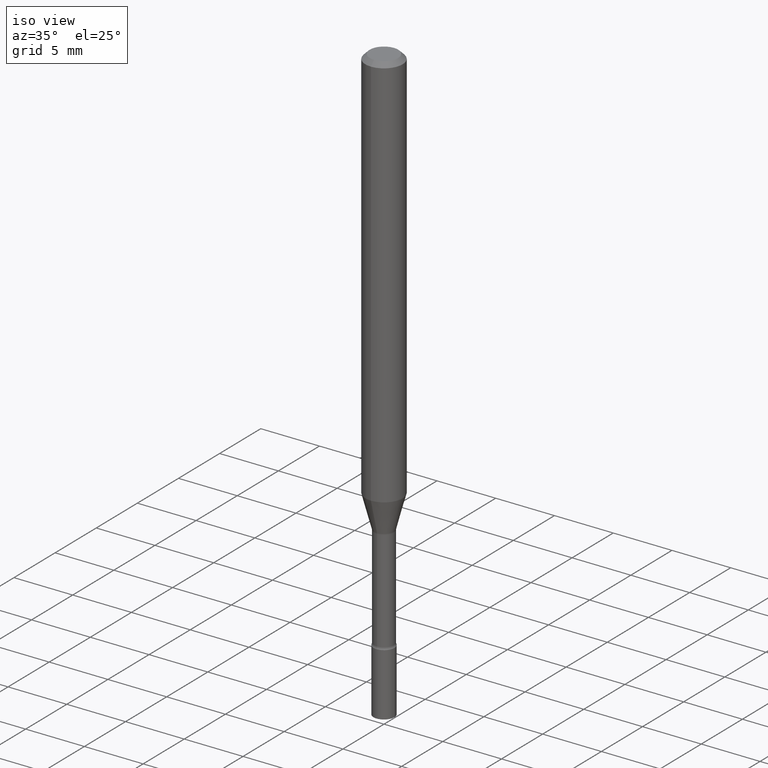
[diagram: clean part render]
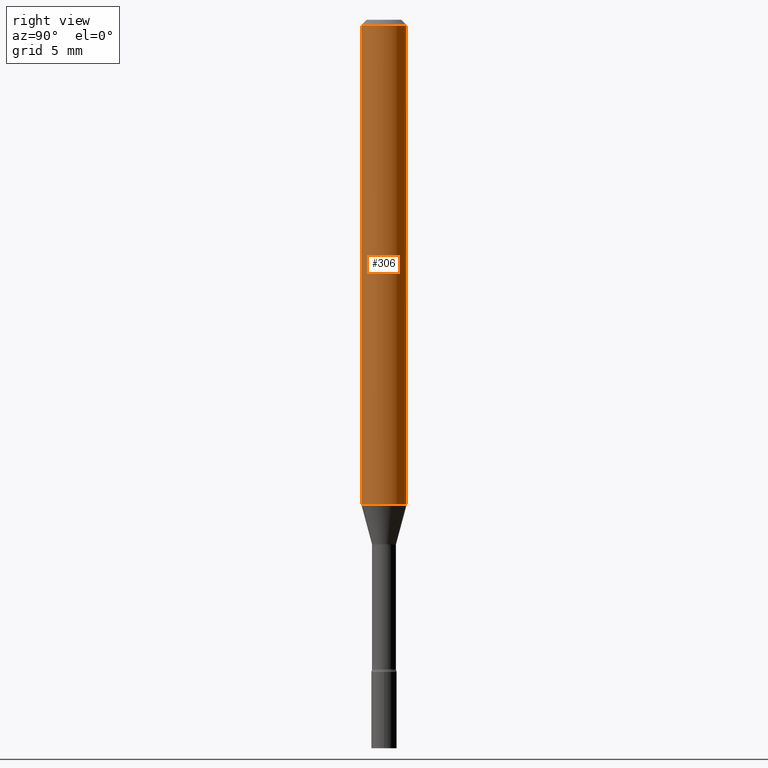
[diagram: tour spotlight — one face highlighted and labeled with its STEP entity id]
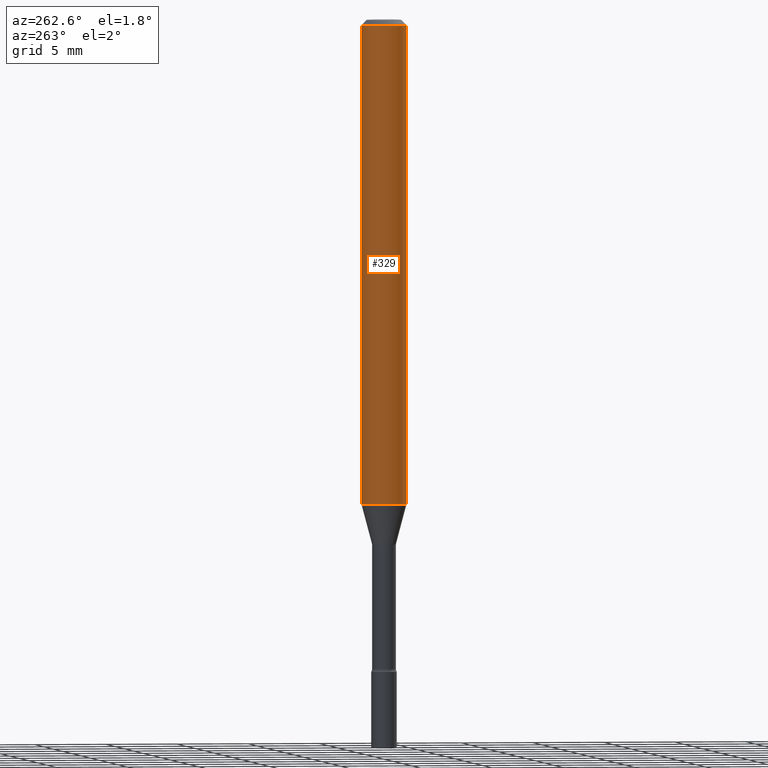
[diagram: tour spotlight — one face highlighted and labeled with its STEP entity id]
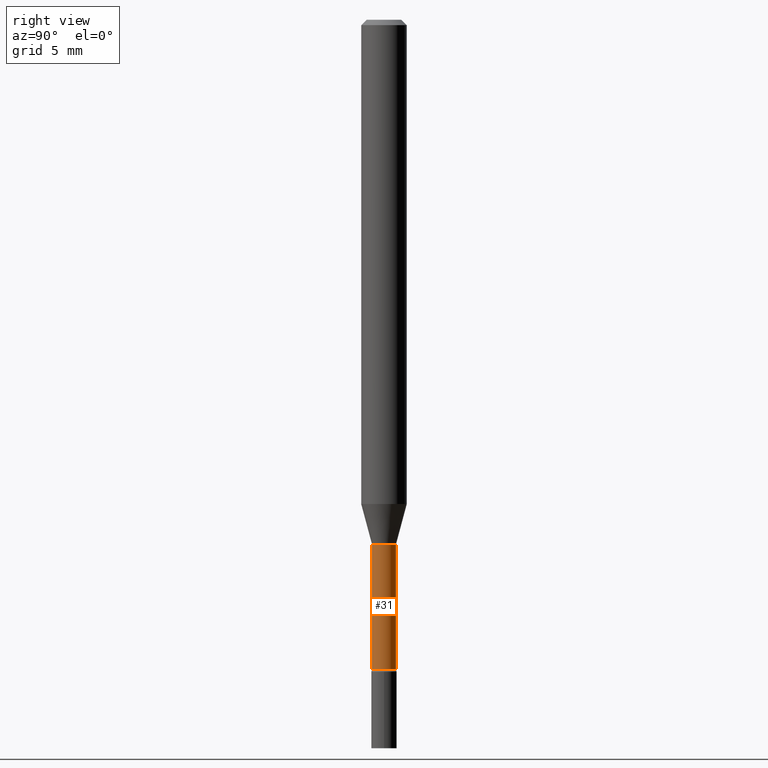
[diagram: tour spotlight — one face highlighted and labeled with its STEP entity id]
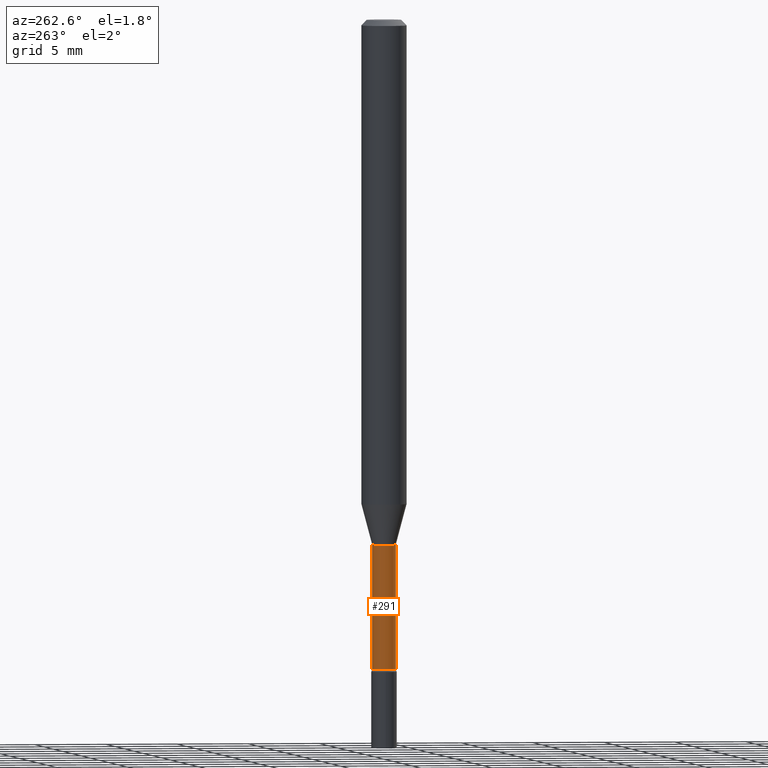
[diagram: tour spotlight — one face highlighted and labeled with its STEP entity id]
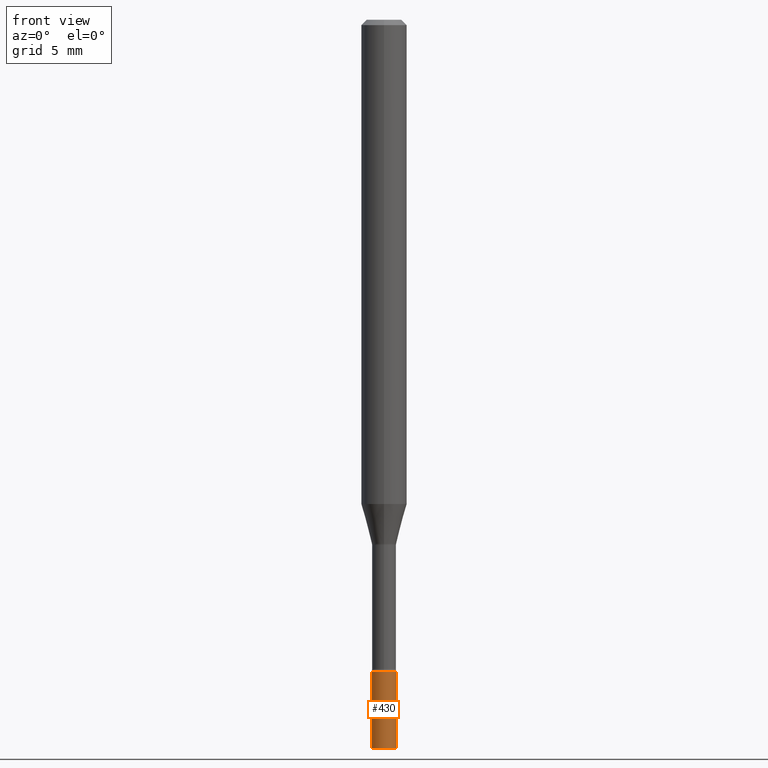
[diagram: tour spotlight — one face highlighted and labeled with its STEP entity id]
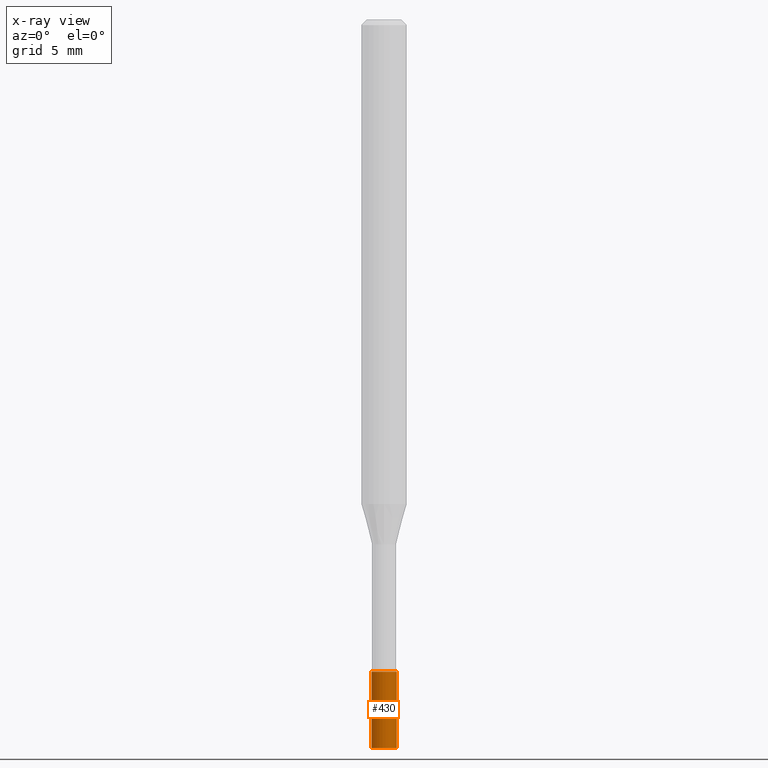
[diagram: x-ray of the same camera — body ghosted, this tour face saturated]
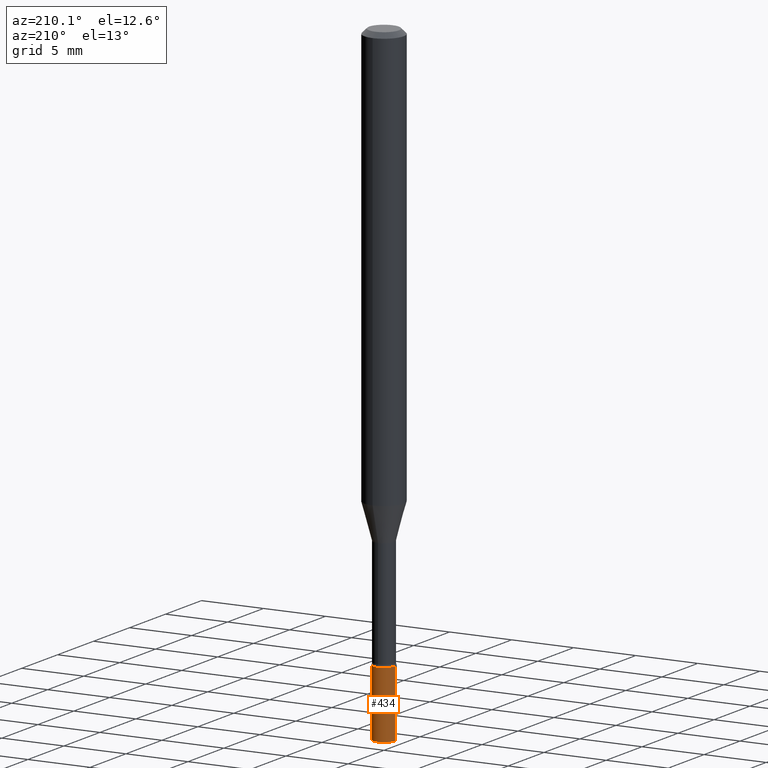
[diagram: tour spotlight — one face highlighted and labeled with its STEP entity id]
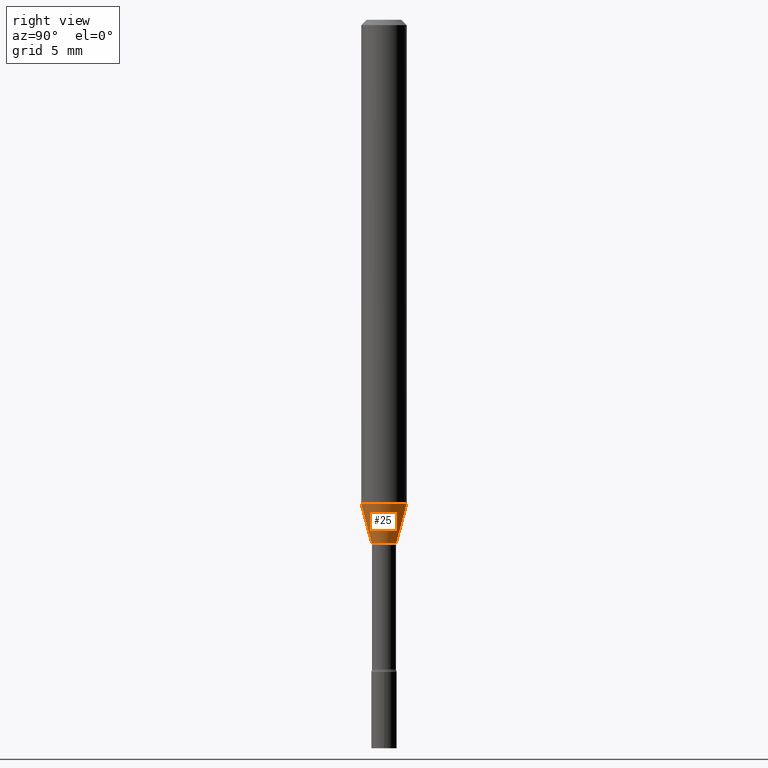
[diagram: tour spotlight — one face highlighted and labeled with its STEP entity id]
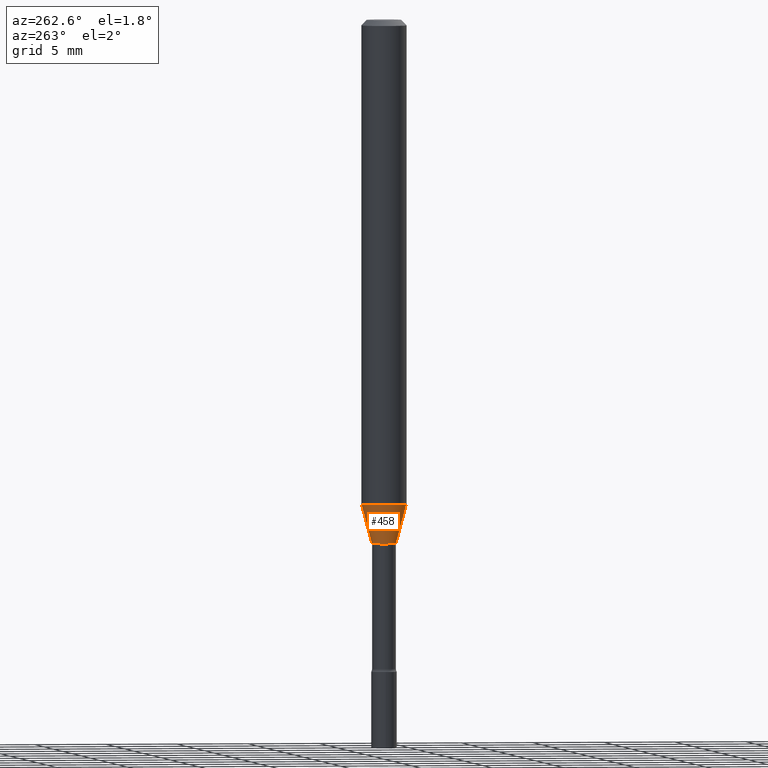
[diagram: tour spotlight — one face highlighted and labeled with its STEP entity id]
A machine part: a face-by-face anatomy tour. The part has 18 B-rep faces; the first image is the clean iso view, then the 8 largest visible faces are spotlighted one at a time (largest first), each with its STEP entity span.

Face 1 — right view, entity #306. In plain terms, the highlighted cylindrical surface (edge-blend (fillet) strip) has radius 1.5875 mm, axis along (-0, 0, 1).
Definition (entity closure, byte-faithful):
#6 = LINE ( 'NONE', #322, #106 ) ;
#68 = CIRCLE ( 'NONE', #366, 0.06250000000000000000 ) ;
#75 = DIRECTION ( 'NONE',  ( -2.445505270089493752E-29, 3.491429120456710013E-15, 1.000000000000000000 ) ) ;
#80 = CARTESIAN_POINT ( 'NONE',  ( 4.440892098500948609E-16, 0.06249999999999532319, -1.329531296095961546 ) ) ;
#97 = VECTOR ( 'NONE', #75, 39.37007874015748143 ) ;
#98 = CARTESIAN_POINT ( 'NONE',  ( 4.440892098500952553E-16, 0.06249999999999993755, -0.01500000000000024751 ) ) ;
#106 = VECTOR ( 'NONE', #273, 39.37007874015748143 ) ;
#112 = CIRCLE ( 'NONE', #379, 0.06250000000000000000 ) ;
#115 = VERTEX_POINT ( 'NONE', #248 ) ;
#136 = DIRECTION ( 'NONE',  ( -6.982962677686265922E-15, -1.000000000000000000, 4.370956789862821150E-15 ) ) ;
#155 = ORIENTED_EDGE ( 'NONE', *, *, #188, .T. ) ;
#166 = VERTEX_POINT ( 'NONE', #377 ) ;
#188 = EDGE_CURVE ( 'NONE', #498, #264, #302, .T. ) ;
#221 = DIRECTION ( 'NONE',  ( -2.445505270089493471E-29, 3.491429120456710013E-15, 1.000000000000000000 ) ) ;
#223 = EDGE_CURVE ( 'NONE', #115, #264, #112, .T. ) ;
#236 = ORIENTED_EDGE ( 'NONE', *, *, #223, .F. ) ;
#248 = CARTESIAN_POINT ( 'NONE',  ( -4.364351673553912750E-16, -0.06250000000000005551, -0.01499999999999981209 ) ) ;
#263 = DIRECTION ( 'NONE',  ( -2.445505270089493471E-29, 3.491429120456710013E-15, 1.000000000000000000 ) ) ;
#264 = VERTEX_POINT ( 'NONE', #98 ) ;
#271 = EDGE_CURVE ( 'NONE', #166, #498, #68, .T. ) ;
#273 = DIRECTION ( 'NONE',  ( -2.445505270089493752E-29, 3.491429120456710013E-15, 1.000000000000000000 ) ) ;
#302 = LINE ( 'NONE', #471, #97 ) ;
#306 = ADVANCED_FACE ( 'NONE', ( #513 ), #466, .T. ) ;
#322 = CARTESIAN_POINT ( 'NONE',  ( -4.364351673553916201E-16, -0.06250000000000000000, 2.182143200285443758E-16 ) ) ;
#336 = CARTESIAN_POINT ( 'NONE',  ( 3.251375791351587719E-29, -4.641964283747991181E-15, -1.329531296095961101 ) ) ;
#341 = DIRECTION ( 'NONE',  ( -2.445505270089493471E-29, 3.491429120456710013E-15, 1.000000000000000000 ) ) ;
#354 = ORIENTED_EDGE ( 'NONE', *, *, #271, .T. ) ;
#366 = AXIS2_PLACEMENT_3D ( 'NONE', #336, #341, #136 ) ;
#368 = ORIENTED_EDGE ( 'NONE', *, *, #484, .F. ) ;
#377 = CARTESIAN_POINT ( 'NONE',  ( -4.364351673553592768E-16, -0.06250000000000467681, -1.329531296095960879 ) ) ;
#379 = AXIS2_PLACEMENT_3D ( 'NONE', #462, #221, #427 ) ;
#427 = DIRECTION ( 'NONE',  ( -6.982962677686265922E-15, -1.000000000000000000, 3.483106191921935554E-15 ) ) ;
#428 = DIRECTION ( 'NONE',  ( -6.982962677686265922E-15, -1.000000000000000000, 3.491429120456710013E-15 ) ) ;
#462 = CARTESIAN_POINT ( 'NONE',  ( 3.668257905134247424E-31, -5.237143680685075742E-17, -0.01500000000000003067 ) ) ;
#464 = CARTESIAN_POINT ( 'NONE',  ( 0.000000000000000000, 0.000000000000000000, 0.000000000000000000 ) ) ;
#466 = CYLINDRICAL_SURFACE ( 'NONE', #474, 0.06250000000000000000 ) ;
#471 = CARTESIAN_POINT ( 'NONE',  ( 4.440892098500625669E-16, 0.06250000000000000000, -2.182143200285443758E-16 ) ) ;
#474 = AXIS2_PLACEMENT_3D ( 'NONE', #464, #263, #428 ) ;
#477 = EDGE_LOOP ( 'NONE', ( #354, #155, #236, #368 ) ) ;
#484 = EDGE_CURVE ( 'NONE', #166, #115, #6, .T. ) ;
#498 = VERTEX_POINT ( 'NONE', #80 ) ;
#513 = FACE_OUTER_BOUND ( 'NONE', #477, .T. ) ;

Face 2 — auxiliary view, entity #329. In plain terms, the highlighted cylindrical surface (edge-blend (fillet) strip) has radius 1.5875 mm, axis along (-0, 0, 1).
Definition (entity closure, byte-faithful):
#6 = LINE ( 'NONE', #322, #106 ) ;
#67 = CARTESIAN_POINT ( 'NONE',  ( 0.000000000000000000, 0.000000000000000000, 0.000000000000000000 ) ) ;
#75 = DIRECTION ( 'NONE',  ( -2.445505270089493752E-29, 3.491429120456710013E-15, 1.000000000000000000 ) ) ;
#80 = CARTESIAN_POINT ( 'NONE',  ( 4.440892098500948609E-16, 0.06249999999999532319, -1.329531296095961546 ) ) ;
#82 = DIRECTION ( 'NONE',  ( -2.445505270089493471E-29, 3.491429120456710013E-15, 1.000000000000000000 ) ) ;
#85 = DIRECTION ( 'NONE',  ( -6.982962677686265922E-15, -1.000000000000000000, 4.370956789862821150E-15 ) ) ;
#97 = VECTOR ( 'NONE', #75, 39.37007874015748143 ) ;
#98 = CARTESIAN_POINT ( 'NONE',  ( 4.440892098500952553E-16, 0.06249999999999993755, -0.01500000000000024751 ) ) ;
#102 = CYLINDRICAL_SURFACE ( 'NONE', #286, 0.06250000000000000000 ) ;
#106 = VECTOR ( 'NONE', #273, 39.37007874015748143 ) ;
#108 = ORIENTED_EDGE ( 'NONE', *, *, #188, .F. ) ;
#115 = VERTEX_POINT ( 'NONE', #248 ) ;
#132 = EDGE_CURVE ( 'NONE', #498, #166, #437, .T. ) ;
#143 = FACE_OUTER_BOUND ( 'NONE', #247, .T. ) ;
#166 = VERTEX_POINT ( 'NONE', #377 ) ;
#188 = EDGE_CURVE ( 'NONE', #498, #264, #302, .T. ) ;
#227 = CIRCLE ( 'NONE', #518, 0.06250000000000000000 ) ;
#228 = DIRECTION ( 'NONE',  ( -2.445505270089493471E-29, 3.491429120456710013E-15, 1.000000000000000000 ) ) ;
#247 = EDGE_LOOP ( 'NONE', ( #108, #449, #388, #396 ) ) ;
#248 = CARTESIAN_POINT ( 'NONE',  ( -4.364351673553912750E-16, -0.06250000000000005551, -0.01499999999999981209 ) ) ;
#264 = VERTEX_POINT ( 'NONE', #98 ) ;
#273 = DIRECTION ( 'NONE',  ( -2.445505270089493752E-29, 3.491429120456710013E-15, 1.000000000000000000 ) ) ;
#286 = AXIS2_PLACEMENT_3D ( 'NONE', #67, #228, #387 ) ;
#302 = LINE ( 'NONE', #471, #97 ) ;
#320 = DIRECTION ( 'NONE',  ( -2.445505270089493471E-29, 3.491429120456710013E-15, 1.000000000000000000 ) ) ;
#322 = CARTESIAN_POINT ( 'NONE',  ( -4.364351673553916201E-16, -0.06250000000000000000, 2.182143200285443758E-16 ) ) ;
#329 = ADVANCED_FACE ( 'NONE', ( #143 ), #102, .T. ) ;
#355 = AXIS2_PLACEMENT_3D ( 'NONE', #421, #320, #85 ) ;
#377 = CARTESIAN_POINT ( 'NONE',  ( -4.364351673553592768E-16, -0.06250000000000467681, -1.329531296095960879 ) ) ;
#387 = DIRECTION ( 'NONE',  ( -6.982962677686265922E-15, -1.000000000000000000, 3.491429120456710013E-15 ) ) ;
#388 = ORIENTED_EDGE ( 'NONE', *, *, #484, .T. ) ;
#396 = ORIENTED_EDGE ( 'NONE', *, *, #446, .F. ) ;
#405 = DIRECTION ( 'NONE',  ( -6.982962677686265922E-15, -1.000000000000000000, 3.483106191921935554E-15 ) ) ;
#408 = CARTESIAN_POINT ( 'NONE',  ( 3.668257905134247424E-31, -5.237143680685075742E-17, -0.01500000000000003067 ) ) ;
#421 = CARTESIAN_POINT ( 'NONE',  ( 3.251375791351587719E-29, -4.641964283747991181E-15, -1.329531296095961101 ) ) ;
#437 = CIRCLE ( 'NONE', #355, 0.06250000000000000000 ) ;
#446 = EDGE_CURVE ( 'NONE', #264, #115, #227, .T. ) ;
#449 = ORIENTED_EDGE ( 'NONE', *, *, #132, .T. ) ;
#471 = CARTESIAN_POINT ( 'NONE',  ( 4.440892098500625669E-16, 0.06250000000000000000, -2.182143200285443758E-16 ) ) ;
#484 = EDGE_CURVE ( 'NONE', #166, #115, #6, .T. ) ;
#498 = VERTEX_POINT ( 'NONE', #80 ) ;
#518 = AXIS2_PLACEMENT_3D ( 'NONE', #408, #82, #405 ) ;

Face 3 — right view, entity #31. In plain terms, the highlighted cylindrical surface (edge-blend (fillet) strip) has radius 0.8357 mm, axis along (-0, 0, 1).
Definition (entity closure, byte-faithful):
#2 = CARTESIAN_POINT ( 'NONE',  ( -2.297394720958429005E-16, -0.03290000000000503633, -1.441974787463810914 ) ) ;
#9 = ORIENTED_EDGE ( 'NONE', *, *, #265, .T. ) ;
#12 = DIRECTION ( 'NONE',  ( -2.445505270089493471E-29, 3.491429120456710013E-15, 1.000000000000000000 ) ) ;
#26 = LINE ( 'NONE', #347, #463 ) ;
#31 = ADVANCED_FACE ( 'NONE', ( #337 ), #447, .T. ) ;
#46 = AXIS2_PLACEMENT_3D ( 'NONE', #117, #299, #346 ) ;
#76 = VERTEX_POINT ( 'NONE', #492 ) ;
#117 = CARTESIAN_POINT ( 'NONE',  ( 0.000000000000000000, 0.000000000000000000, 0.000000000000000000 ) ) ;
#156 = ORIENTED_EDGE ( 'NONE', *, *, #309, .T. ) ;
#160 = ORIENTED_EDGE ( 'NONE', *, *, #272, .F. ) ;
#172 = DIRECTION ( 'NONE',  ( -6.982962677686266711E-15, -1.000000000000000000, 0.000000000000000000 ) ) ;
#173 = EDGE_CURVE ( 'NONE', #420, #205, #516, .T. ) ;
#177 = EDGE_LOOP ( 'NONE', ( #9, #156, #453, #160 ) ) ;
#179 = DIRECTION ( 'NONE',  ( -2.445505270089493471E-29, 3.491429120456710013E-15, 1.000000000000000000 ) ) ;
#183 = CARTESIAN_POINT ( 'NONE',  ( 4.358735532259390602E-29, -6.222933293921259264E-15, -1.782345589506695971 ) ) ;
#187 = DIRECTION ( 'NONE',  ( -2.445505270089493752E-29, 3.491429120456710013E-15, 1.000000000000000000 ) ) ;
#205 = VERTEX_POINT ( 'NONE', #381 ) ;
#210 = CIRCLE ( 'NONE', #304, 0.03289999999999995706 ) ;
#215 = CARTESIAN_POINT ( 'NONE',  ( 3.526356942078927021E-29, -5.034552763915523754E-15, -1.441974787463810914 ) ) ;
#258 = LINE ( 'NONE', #300, #425 ) ;
#265 = EDGE_CURVE ( 'NONE', #76, #390, #210, .T. ) ;
#272 = EDGE_CURVE ( 'NONE', #76, #420, #258, .T. ) ;
#299 = DIRECTION ( 'NONE',  ( -2.445505270089493471E-29, 3.491429120456710013E-15, 1.000000000000000000 ) ) ;
#300 = CARTESIAN_POINT ( 'NONE',  ( -2.297394720958780541E-16, -0.03289999999999998481, 1.148680180630256997E-16 ) ) ;
#304 = AXIS2_PLACEMENT_3D ( 'NONE', #183, #179, #506 ) ;
#309 = EDGE_CURVE ( 'NONE', #390, #205, #26, .T. ) ;
#337 = FACE_OUTER_BOUND ( 'NONE', #177, .T. ) ;
#346 = DIRECTION ( 'NONE',  ( -6.982962677686265922E-15, -1.000000000000000000, 3.491429120456709618E-15 ) ) ;
#347 = CARTESIAN_POINT ( 'NONE',  ( 2.337685600650728039E-16, 0.03289999999999998481, -1.148680180630256997E-16 ) ) ;
#381 = CARTESIAN_POINT ( 'NONE',  ( 2.337685600651166350E-16, 0.03289999999999497493, -1.441974787463810914 ) ) ;
#390 = VERTEX_POINT ( 'NONE', #439 ) ;
#413 = AXIS2_PLACEMENT_3D ( 'NONE', #215, #12, #172 ) ;
#420 = VERTEX_POINT ( 'NONE', #2 ) ;
#425 = VECTOR ( 'NONE', #510, 39.37007874015748143 ) ;
#439 = CARTESIAN_POINT ( 'NONE',  ( 2.412292587905977528E-16, 0.03289999999999373287, -1.782345589506695971 ) ) ;
#447 = CYLINDRICAL_SURFACE ( 'NONE', #46, 0.03289999999999998481 ) ;
#453 = ORIENTED_EDGE ( 'NONE', *, *, #173, .F. ) ;
#463 = VECTOR ( 'NONE', #187, 39.37007874015748143 ) ;
#492 = CARTESIAN_POINT ( 'NONE',  ( -2.297394720958342723E-16, -0.03290000000000618124, -1.782345589506695971 ) ) ;
#506 = DIRECTION ( 'NONE',  ( -6.982962677686265922E-15, -1.000000000000000000, 0.000000000000000000 ) ) ;
#510 = DIRECTION ( 'NONE',  ( -2.445505270089493752E-29, 3.491429120456710013E-15, 1.000000000000000000 ) ) ;
#516 = CIRCLE ( 'NONE', #413, 0.03290000000000000563 ) ;

Face 4 — auxiliary view, entity #291. In plain terms, the highlighted cylindrical surface (edge-blend (fillet) strip) has radius 0.8357 mm, axis along (-0, 0, 1).
Definition (entity closure, byte-faithful):
#2 = CARTESIAN_POINT ( 'NONE',  ( -2.297394720958429005E-16, -0.03290000000000503633, -1.441974787463810914 ) ) ;
#26 = LINE ( 'NONE', #347, #463 ) ;
#28 = CIRCLE ( 'NONE', #502, 0.03290000000000000563 ) ;
#76 = VERTEX_POINT ( 'NONE', #492 ) ;
#88 = ORIENTED_EDGE ( 'NONE', *, *, #272, .T. ) ;
#100 = DIRECTION ( 'NONE',  ( -6.982962677686265922E-15, -1.000000000000000000, 3.491429120456709618E-15 ) ) ;
#123 = DIRECTION ( 'NONE',  ( -6.982962677686266711E-15, -1.000000000000000000, 0.000000000000000000 ) ) ;
#145 = ORIENTED_EDGE ( 'NONE', *, *, #309, .F. ) ;
#165 = AXIS2_PLACEMENT_3D ( 'NONE', #232, #270, #189 ) ;
#187 = DIRECTION ( 'NONE',  ( -2.445505270089493752E-29, 3.491429120456710013E-15, 1.000000000000000000 ) ) ;
#189 = DIRECTION ( 'NONE',  ( -6.982962677686265922E-15, -1.000000000000000000, 0.000000000000000000 ) ) ;
#202 = EDGE_CURVE ( 'NONE', #390, #76, #393, .T. ) ;
#203 = EDGE_LOOP ( 'NONE', ( #145, #441, #88, #416 ) ) ;
#205 = VERTEX_POINT ( 'NONE', #381 ) ;
#220 = FACE_OUTER_BOUND ( 'NONE', #203, .T. ) ;
#232 = CARTESIAN_POINT ( 'NONE',  ( 4.358735532259390602E-29, -6.222933293921259264E-15, -1.782345589506695971 ) ) ;
#258 = LINE ( 'NONE', #300, #425 ) ;
#261 = CARTESIAN_POINT ( 'NONE',  ( 0.000000000000000000, 0.000000000000000000, 0.000000000000000000 ) ) ;
#270 = DIRECTION ( 'NONE',  ( -2.445505270089493471E-29, 3.491429120456710013E-15, 1.000000000000000000 ) ) ;
#272 = EDGE_CURVE ( 'NONE', #76, #420, #258, .T. ) ;
#291 = ADVANCED_FACE ( 'NONE', ( #220 ), #295, .T. ) ;
#295 = CYLINDRICAL_SURFACE ( 'NONE', #511, 0.03289999999999998481 ) ;
#298 = DIRECTION ( 'NONE',  ( -2.445505270089493471E-29, 3.491429120456710013E-15, 1.000000000000000000 ) ) ;
#300 = CARTESIAN_POINT ( 'NONE',  ( -2.297394720958780541E-16, -0.03289999999999998481, 1.148680180630256997E-16 ) ) ;
#309 = EDGE_CURVE ( 'NONE', #390, #205, #26, .T. ) ;
#347 = CARTESIAN_POINT ( 'NONE',  ( 2.337685600650728039E-16, 0.03289999999999998481, -1.148680180630256997E-16 ) ) ;
#352 = EDGE_CURVE ( 'NONE', #205, #420, #28, .T. ) ;
#360 = CARTESIAN_POINT ( 'NONE',  ( 3.526356942078927021E-29, -5.034552763915523754E-15, -1.441974787463810914 ) ) ;
#381 = CARTESIAN_POINT ( 'NONE',  ( 2.337685600651166350E-16, 0.03289999999999497493, -1.441974787463810914 ) ) ;
#390 = VERTEX_POINT ( 'NONE', #439 ) ;
#393 = CIRCLE ( 'NONE', #165, 0.03289999999999995706 ) ;
#416 = ORIENTED_EDGE ( 'NONE', *, *, #352, .F. ) ;
#420 = VERTEX_POINT ( 'NONE', #2 ) ;
#425 = VECTOR ( 'NONE', #510, 39.37007874015748143 ) ;
#439 = CARTESIAN_POINT ( 'NONE',  ( 2.412292587905977528E-16, 0.03289999999999373287, -1.782345589506695971 ) ) ;
#441 = ORIENTED_EDGE ( 'NONE', *, *, #202, .T. ) ;
#463 = VECTOR ( 'NONE', #187, 39.37007874015748143 ) ;
#483 = DIRECTION ( 'NONE',  ( -2.445505270089493471E-29, 3.491429120456710013E-15, 1.000000000000000000 ) ) ;
#492 = CARTESIAN_POINT ( 'NONE',  ( -2.297394720958342723E-16, -0.03290000000000618124, -1.782345589506695971 ) ) ;
#502 = AXIS2_PLACEMENT_3D ( 'NONE', #360, #483, #123 ) ;
#510 = DIRECTION ( 'NONE',  ( -2.445505270089493752E-29, 3.491429120456710013E-15, 1.000000000000000000 ) ) ;
#511 = AXIS2_PLACEMENT_3D ( 'NONE', #261, #298, #100 ) ;

Face 5 — front view, entity #430. An x-ray twin of the same camera follows (body ghosted, this face saturated) — the face is partly hidden behind the body. In plain terms, the highlighted cylindrical surface (edge-blend (fillet) strip) has radius 0.889 mm, axis along (-0, 0, 1).
Definition (entity closure, byte-faithful):
#3 = ORIENTED_EDGE ( 'NONE', *, *, #240, .T. ) ;
#21 = DIRECTION ( 'NONE',  ( 1.000000000000000000, -6.982962677686276966E-15, 0.000000000000000000 ) ) ;
#24 = CARTESIAN_POINT ( 'NONE',  ( -0.03500000000000000333, -6.367667179591725930E-15, -2.000000000000000000 ) ) ;
#27 = CIRCLE ( 'NONE', #310, 0.03500000000000000333 ) ;
#42 = VERTEX_POINT ( 'NONE', #283 ) ;
#50 = DIRECTION ( 'NONE',  ( -2.445468806185136877E-29, 3.491481338843145188E-15, 1.000000000000000000 ) ) ;
#71 = EDGE_CURVE ( 'NONE', #386, #42, #27, .T. ) ;
#74 = AXIS2_PLACEMENT_3D ( 'NONE', #433, #385, #21 ) ;
#78 = EDGE_CURVE ( 'NONE', #250, #42, #488, .T. ) ;
#81 = ORIENTED_EDGE ( 'NONE', *, *, #78, .T. ) ;
#96 = CARTESIAN_POINT ( 'NONE',  ( 0.03500000000000000333, -7.227366371405310342E-15, -2.000000000000000000 ) ) ;
#118 = DIRECTION ( 'NONE',  ( -2.445468806185136597E-29, 3.491481338843145583E-15, 1.000000000000000000 ) ) ;
#125 = LINE ( 'NONE', #445, #423 ) ;
#154 = CARTESIAN_POINT ( 'NONE',  ( -0.03500000000000000333, -6.367667179591725930E-15, -1.790000000000000036 ) ) ;
#157 = CYLINDRICAL_SURFACE ( 'NONE', #491, 0.03500000000000000333 ) ;
#193 = DIRECTION ( 'NONE',  ( -2.445468806185136877E-29, 3.491481338843145188E-15, 1.000000000000000000 ) ) ;
#230 = ORIENTED_EDGE ( 'NONE', *, *, #520, .F. ) ;
#240 = EDGE_CURVE ( 'NONE', #254, #250, #332, .T. ) ;
#250 = VERTEX_POINT ( 'NONE', #96 ) ;
#254 = VERTEX_POINT ( 'NONE', #24 ) ;
#255 = CARTESIAN_POINT ( 'NONE',  ( 4.377389163071394665E-29, -6.249751596529231267E-15, -1.790000000000000036 ) ) ;
#278 = DIRECTION ( 'NONE',  ( -2.445468806185136597E-29, 3.491481338843145583E-15, 1.000000000000000000 ) ) ;
#281 = DIRECTION ( 'NONE',  ( 1.000000000000000000, -6.982962677686276966E-15, 0.000000000000000000 ) ) ;
#283 = CARTESIAN_POINT ( 'NONE',  ( 0.03500000000000000333, -6.494155290248250444E-15, -1.790000000000000036 ) ) ;
#301 = EDGE_LOOP ( 'NONE', ( #230, #3, #81, #328 ) ) ;
#310 = AXIS2_PLACEMENT_3D ( 'NONE', #255, #118, #281 ) ;
#314 = CARTESIAN_POINT ( 'NONE',  ( 0.000000000000000000, 0.000000000000000000, 0.000000000000000000 ) ) ;
#318 = FACE_OUTER_BOUND ( 'NONE', #301, .T. ) ;
#328 = ORIENTED_EDGE ( 'NONE', *, *, #71, .F. ) ;
#332 = CIRCLE ( 'NONE', #74, 0.03500000000000000333 ) ;
#385 = DIRECTION ( 'NONE',  ( -2.445468806185136597E-29, 3.491481338843145583E-15, 1.000000000000000000 ) ) ;
#386 = VERTEX_POINT ( 'NONE', #154 ) ;
#423 = VECTOR ( 'NONE', #193, 39.37007874015748143 ) ;
#430 = ADVANCED_FACE ( 'NONE', ( #318 ), #157, .T. ) ;
#433 = CARTESIAN_POINT ( 'NONE',  ( 4.890937612370273194E-29, -6.982962677686291165E-15, -2.000000000000000000 ) ) ;
#445 = CARTESIAN_POINT ( 'NONE',  ( -0.03500000000000000333, 2.486899575160350887E-16, -1.721627281589217108E-30 ) ) ;
#481 = DIRECTION ( 'NONE',  ( 1.000000000000000000, -6.982962677686265922E-15, 4.876176775795936353E-29 ) ) ;
#488 = LINE ( 'NONE', #494, #517 ) ;
#491 = AXIS2_PLACEMENT_3D ( 'NONE', #314, #278, #481 ) ;
#494 = CARTESIAN_POINT ( 'NONE',  ( 0.03500000000000000333, -2.444036937190193250E-16, 1.706661871528577808E-30 ) ) ;
#517 = VECTOR ( 'NONE', #50, 39.37007874015748143 ) ;
#520 = EDGE_CURVE ( 'NONE', #254, #386, #125, .T. ) ;

Face 6 — auxiliary view, entity #434. In plain terms, the highlighted cylindrical surface (edge-blend (fillet) strip) has radius 0.889 mm, axis along (-0, 0, 1).
Definition (entity closure, byte-faithful):
#7 = CIRCLE ( 'NONE', #224, 0.03500000000000000333 ) ;
#24 = CARTESIAN_POINT ( 'NONE',  ( -0.03500000000000000333, -6.367667179591725930E-15, -2.000000000000000000 ) ) ;
#33 = DIRECTION ( 'NONE',  ( -2.445468806185136597E-29, 3.491481338843145583E-15, 1.000000000000000000 ) ) ;
#39 = ORIENTED_EDGE ( 'NONE', *, *, #148, .T. ) ;
#42 = VERTEX_POINT ( 'NONE', #283 ) ;
#44 = CARTESIAN_POINT ( 'NONE',  ( 4.377389163071394665E-29, -6.249751596529231267E-15, -1.790000000000000036 ) ) ;
#50 = DIRECTION ( 'NONE',  ( -2.445468806185136877E-29, 3.491481338843145188E-15, 1.000000000000000000 ) ) ;
#78 = EDGE_CURVE ( 'NONE', #250, #42, #488, .T. ) ;
#87 = DIRECTION ( 'NONE',  ( -2.445468806185136597E-29, 3.491481338843145583E-15, 1.000000000000000000 ) ) ;
#94 = DIRECTION ( 'NONE',  ( -2.445468806185136597E-29, 3.491481338843145583E-15, 1.000000000000000000 ) ) ;
#96 = CARTESIAN_POINT ( 'NONE',  ( 0.03500000000000000333, -7.227366371405310342E-15, -2.000000000000000000 ) ) ;
#125 = LINE ( 'NONE', #445, #423 ) ;
#146 = EDGE_CURVE ( 'NONE', #42, #386, #296, .T. ) ;
#148 = EDGE_CURVE ( 'NONE', #250, #254, #7, .T. ) ;
#154 = CARTESIAN_POINT ( 'NONE',  ( -0.03500000000000000333, -6.367667179591725930E-15, -1.790000000000000036 ) ) ;
#193 = DIRECTION ( 'NONE',  ( -2.445468806185136877E-29, 3.491481338843145188E-15, 1.000000000000000000 ) ) ;
#206 = CYLINDRICAL_SURFACE ( 'NONE', #241, 0.03500000000000000333 ) ;
#207 = DIRECTION ( 'NONE',  ( 1.000000000000000000, -6.982962677686276966E-15, 0.000000000000000000 ) ) ;
#224 = AXIS2_PLACEMENT_3D ( 'NONE', #370, #94, #414 ) ;
#231 = AXIS2_PLACEMENT_3D ( 'NONE', #44, #87, #207 ) ;
#238 = FACE_OUTER_BOUND ( 'NONE', #375, .T. ) ;
#241 = AXIS2_PLACEMENT_3D ( 'NONE', #442, #33, #242 ) ;
#242 = DIRECTION ( 'NONE',  ( 1.000000000000000000, -6.982962677686265922E-15, 4.876176775795936353E-29 ) ) ;
#250 = VERTEX_POINT ( 'NONE', #96 ) ;
#254 = VERTEX_POINT ( 'NONE', #24 ) ;
#283 = CARTESIAN_POINT ( 'NONE',  ( 0.03500000000000000333, -6.494155290248250444E-15, -1.790000000000000036 ) ) ;
#296 = CIRCLE ( 'NONE', #231, 0.03500000000000000333 ) ;
#317 = ORIENTED_EDGE ( 'NONE', *, *, #146, .F. ) ;
#364 = ORIENTED_EDGE ( 'NONE', *, *, #78, .F. ) ;
#370 = CARTESIAN_POINT ( 'NONE',  ( 4.890937612370273194E-29, -6.982962677686291165E-15, -2.000000000000000000 ) ) ;
#375 = EDGE_LOOP ( 'NONE', ( #39, #407, #317, #364 ) ) ;
#386 = VERTEX_POINT ( 'NONE', #154 ) ;
#407 = ORIENTED_EDGE ( 'NONE', *, *, #520, .T. ) ;
#414 = DIRECTION ( 'NONE',  ( 1.000000000000000000, -6.982962677686276966E-15, 0.000000000000000000 ) ) ;
#423 = VECTOR ( 'NONE', #193, 39.37007874015748143 ) ;
#434 = ADVANCED_FACE ( 'NONE', ( #238 ), #206, .T. ) ;
#442 = CARTESIAN_POINT ( 'NONE',  ( 0.000000000000000000, 0.000000000000000000, 0.000000000000000000 ) ) ;
#445 = CARTESIAN_POINT ( 'NONE',  ( -0.03500000000000000333, 2.486899575160350887E-16, -1.721627281589217108E-30 ) ) ;
#488 = LINE ( 'NONE', #494, #517 ) ;
#494 = CARTESIAN_POINT ( 'NONE',  ( 0.03500000000000000333, -2.444036937190193250E-16, 1.706661871528577808E-30 ) ) ;
#517 = VECTOR ( 'NONE', #50, 39.37007874015748143 ) ;
#520 = EDGE_CURVE ( 'NONE', #254, #386, #125, .T. ) ;

Face 7 — right view, entity #25. In plain terms, the highlighted conical surface has half-angle 15 deg.
Definition (entity closure, byte-faithful):
#14 = ORIENTED_EDGE ( 'NONE', *, *, #383, .T. ) ;
#23 = CARTESIAN_POINT ( 'NONE',  ( 3.516862791996960792E-29, -5.020998038650528484E-15, -1.438092501787272992 ) ) ;
#25 = ADVANCED_FACE ( 'NONE', ( #70 ), #73, .T. ) ;
#48 = CIRCLE ( 'NONE', #351, 0.03341111260566399094 ) ;
#62 = DIRECTION ( 'NONE',  ( -6.982962677686265133E-15, -1.000000000000000000, 0.000000000000000000 ) ) ;
#68 = CIRCLE ( 'NONE', #366, 0.06250000000000000000 ) ;
#70 = FACE_OUTER_BOUND ( 'NONE', #170, .T. ) ;
#72 = ORIENTED_EDGE ( 'NONE', *, *, #271, .F. ) ;
#73 = CONICAL_SURFACE ( 'NONE', #450, 0.03341111260566399094, 0.2617993877991494633 ) ;
#80 = CARTESIAN_POINT ( 'NONE',  ( 4.440892098500948609E-16, 0.06249999999999532319, -1.329531296095961546 ) ) ;
#116 = LINE ( 'NONE', #167, #311 ) ;
#136 = DIRECTION ( 'NONE',  ( -6.982962677686265922E-15, -1.000000000000000000, 4.370956789862821150E-15 ) ) ;
#138 = CARTESIAN_POINT ( 'NONE',  ( 2.374002335562077687E-16, 0.03341111260565896718, -1.438092501787272992 ) ) ;
#141 = DIRECTION ( 'NONE',  ( -2.445505270089493471E-29, 3.491429120456710013E-15, 1.000000000000000000 ) ) ;
#166 = VERTEX_POINT ( 'NONE', #377 ) ;
#167 = CARTESIAN_POINT ( 'NONE',  ( -2.333085523452895883E-16, -0.03341111260566900776, -1.438092501787272992 ) ) ;
#170 = EDGE_LOOP ( 'NONE', ( #14, #399, #72, #321 ) ) ;
#222 = CARTESIAN_POINT ( 'NONE',  ( 3.407447217031514627E-16, 0.03341111260565896718, -1.438092501787272992 ) ) ;
#237 = EDGE_CURVE ( 'NONE', #307, #498, #384, .T. ) ;
#269 = VECTOR ( 'NONE', #339, 39.37007874015748854 ) ;
#271 = EDGE_CURVE ( 'NONE', #166, #498, #68, .T. ) ;
#307 = VERTEX_POINT ( 'NONE', #222 ) ;
#308 = DIRECTION ( 'NONE',  ( -1.807323732225324223E-15, -0.2588190451025173533, 0.9659258262890690894 ) ) ;
#311 = VECTOR ( 'NONE', #308, 39.37007874015748854 ) ;
#312 = CARTESIAN_POINT ( 'NONE',  ( -2.333085523452895883E-16, -0.03341111260566900776, -1.438092501787272992 ) ) ;
#321 = ORIENTED_EDGE ( 'NONE', *, *, #418, .F. ) ;
#336 = CARTESIAN_POINT ( 'NONE',  ( 3.251375791351587719E-29, -4.641964283747991181E-15, -1.329531296095961101 ) ) ;
#339 = DIRECTION ( 'NONE',  ( 1.839019923739594399E-15, 0.2588190451025241257, 0.9659258262890673130 ) ) ;
#341 = DIRECTION ( 'NONE',  ( -2.445505270089493471E-29, 3.491429120456710013E-15, 1.000000000000000000 ) ) ;
#351 = AXIS2_PLACEMENT_3D ( 'NONE', #398, #443, #486 ) ;
#366 = AXIS2_PLACEMENT_3D ( 'NONE', #336, #341, #136 ) ;
#377 = CARTESIAN_POINT ( 'NONE',  ( -4.364351673553592768E-16, -0.06250000000000467681, -1.329531296095960879 ) ) ;
#383 = EDGE_CURVE ( 'NONE', #397, #307, #48, .T. ) ;
#384 = LINE ( 'NONE', #138, #269 ) ;
#397 = VERTEX_POINT ( 'NONE', #312 ) ;
#398 = CARTESIAN_POINT ( 'NONE',  ( 3.516862791996960792E-29, -5.020998038650528484E-15, -1.438092501787272992 ) ) ;
#399 = ORIENTED_EDGE ( 'NONE', *, *, #237, .T. ) ;
#418 = EDGE_CURVE ( 'NONE', #397, #166, #116, .T. ) ;
#443 = DIRECTION ( 'NONE',  ( -2.445505270089493471E-29, 3.491429120456710013E-15, 1.000000000000000000 ) ) ;
#450 = AXIS2_PLACEMENT_3D ( 'NONE', #23, #141, #62 ) ;
#486 = DIRECTION ( 'NONE',  ( -6.982962677686265133E-15, -1.000000000000000000, 0.000000000000000000 ) ) ;
#498 = VERTEX_POINT ( 'NONE', #80 ) ;

Face 8 — auxiliary view, entity #458. In plain terms, the highlighted conical surface has half-angle 15 deg.
Definition (entity closure, byte-faithful):
#8 = DIRECTION ( 'NONE',  ( -6.982962677686265133E-15, -1.000000000000000000, 0.000000000000000000 ) ) ;
#40 = CARTESIAN_POINT ( 'NONE',  ( 3.516862791996960792E-29, -5.020998038650528484E-15, -1.438092501787272992 ) ) ;
#52 = EDGE_CURVE ( 'NONE', #307, #397, #342, .T. ) ;
#80 = CARTESIAN_POINT ( 'NONE',  ( 4.440892098500948609E-16, 0.06249999999999532319, -1.329531296095961546 ) ) ;
#85 = DIRECTION ( 'NONE',  ( -6.982962677686265922E-15, -1.000000000000000000, 4.370956789862821150E-15 ) ) ;
#114 = DIRECTION ( 'NONE',  ( -2.445505270089493471E-29, 3.491429120456710013E-15, 1.000000000000000000 ) ) ;
#116 = LINE ( 'NONE', #167, #311 ) ;
#132 = EDGE_CURVE ( 'NONE', #498, #166, #437, .T. ) ;
#138 = CARTESIAN_POINT ( 'NONE',  ( 2.374002335562077687E-16, 0.03341111260565896718, -1.438092501787272992 ) ) ;
#166 = VERTEX_POINT ( 'NONE', #377 ) ;
#167 = CARTESIAN_POINT ( 'NONE',  ( -2.333085523452895883E-16, -0.03341111260566900776, -1.438092501787272992 ) ) ;
#168 = CARTESIAN_POINT ( 'NONE',  ( 3.516862791996960792E-29, -5.020998038650528484E-15, -1.438092501787272992 ) ) ;
#195 = EDGE_LOOP ( 'NONE', ( #485, #402, #476, #324 ) ) ;
#199 = CONICAL_SURFACE ( 'NONE', #358, 0.03341111260566399094, 0.2617993877991494633 ) ;
#222 = CARTESIAN_POINT ( 'NONE',  ( 3.407447217031514627E-16, 0.03341111260565896718, -1.438092501787272992 ) ) ;
#226 = AXIS2_PLACEMENT_3D ( 'NONE', #168, #367, #8 ) ;
#237 = EDGE_CURVE ( 'NONE', #307, #498, #384, .T. ) ;
#269 = VECTOR ( 'NONE', #339, 39.37007874015748854 ) ;
#307 = VERTEX_POINT ( 'NONE', #222 ) ;
#308 = DIRECTION ( 'NONE',  ( -1.807323732225324223E-15, -0.2588190451025173533, 0.9659258262890690894 ) ) ;
#311 = VECTOR ( 'NONE', #308, 39.37007874015748854 ) ;
#312 = CARTESIAN_POINT ( 'NONE',  ( -2.333085523452895883E-16, -0.03341111260566900776, -1.438092501787272992 ) ) ;
#320 = DIRECTION ( 'NONE',  ( -2.445505270089493471E-29, 3.491429120456710013E-15, 1.000000000000000000 ) ) ;
#324 = ORIENTED_EDGE ( 'NONE', *, *, #132, .F. ) ;
#339 = DIRECTION ( 'NONE',  ( 1.839019923739594399E-15, 0.2588190451025241257, 0.9659258262890673130 ) ) ;
#342 = CIRCLE ( 'NONE', #226, 0.03341111260566399094 ) ;
#355 = AXIS2_PLACEMENT_3D ( 'NONE', #421, #320, #85 ) ;
#356 = DIRECTION ( 'NONE',  ( -6.982962677686265133E-15, -1.000000000000000000, 0.000000000000000000 ) ) ;
#358 = AXIS2_PLACEMENT_3D ( 'NONE', #40, #114, #356 ) ;
#365 = FACE_OUTER_BOUND ( 'NONE', #195, .T. ) ;
#367 = DIRECTION ( 'NONE',  ( -2.445505270089493471E-29, 3.491429120456710013E-15, 1.000000000000000000 ) ) ;
#377 = CARTESIAN_POINT ( 'NONE',  ( -4.364351673553592768E-16, -0.06250000000000467681, -1.329531296095960879 ) ) ;
#384 = LINE ( 'NONE', #138, #269 ) ;
#397 = VERTEX_POINT ( 'NONE', #312 ) ;
#402 = ORIENTED_EDGE ( 'NONE', *, *, #52, .T. ) ;
#418 = EDGE_CURVE ( 'NONE', #397, #166, #116, .T. ) ;
#421 = CARTESIAN_POINT ( 'NONE',  ( 3.251375791351587719E-29, -4.641964283747991181E-15, -1.329531296095961101 ) ) ;
#437 = CIRCLE ( 'NONE', #355, 0.06250000000000000000 ) ;
#458 = ADVANCED_FACE ( 'NONE', ( #365 ), #199, .T. ) ;
#476 = ORIENTED_EDGE ( 'NONE', *, *, #418, .T. ) ;
#485 = ORIENTED_EDGE ( 'NONE', *, *, #237, .F. ) ;
#498 = VERTEX_POINT ( 'NONE', #80 ) ;